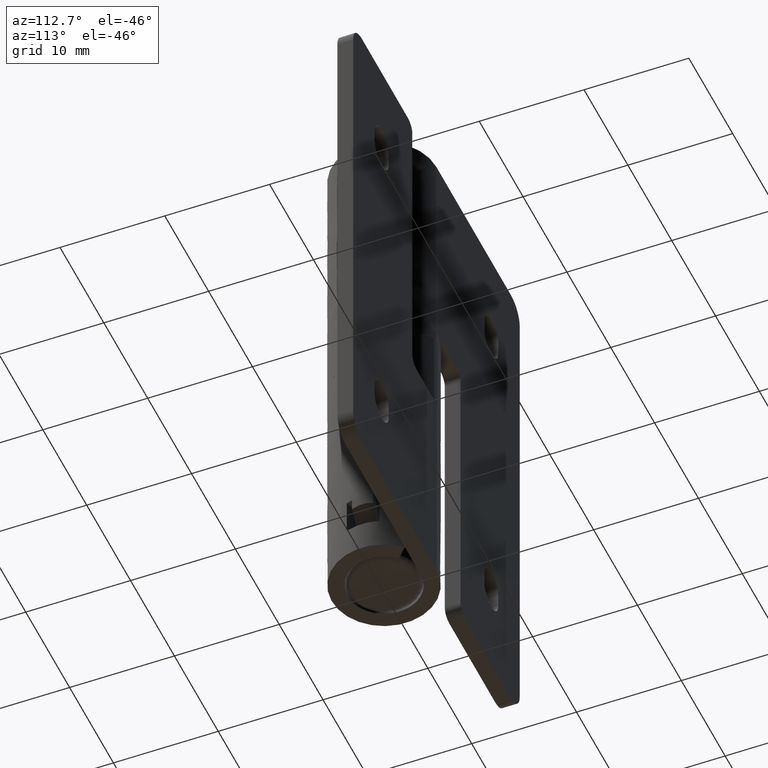
[diagram: clean part render]
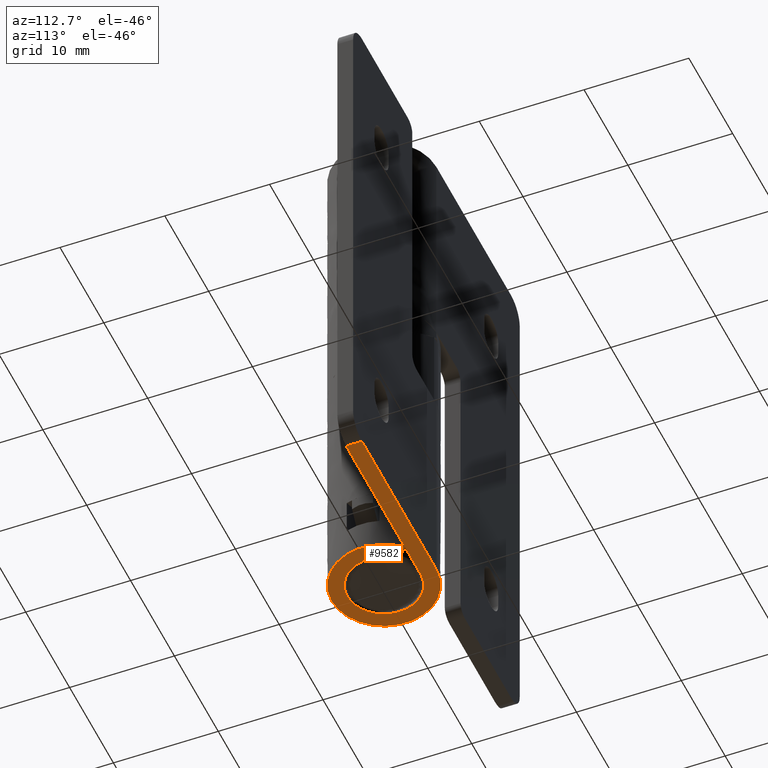
[diagram: same view with one face highlighted and labeled with its STEP entity id]
A machine part, auxiliary view. The second image highlights one B-rep face of the part: STEP entity #9582.
In plain terms, the highlighted face is a freeform B-spline surface patch.
Its self-contained STEP definition (entity closure, byte-faithful):
#6461=CARTESIAN_POINT('',(2.499499989507380,2.449999975338090,0.000000011492033));
#6462=VERTEX_POINT('',#6461);
#6468=CARTESIAN_POINT('',(0.000000015343861,3.500000000000000,7.054697E-017));
#6469=VERTEX_POINT('',#6468);
#6470=CARTESIAN_POINT('',(0.000000015343861,3.500000000000000,7.054697E-017));
#6471=CARTESIAN_POINT('',(-0.262597160987265,3.500034496063480,-1.207352E-009));
#6472=CARTESIAN_POINT('',(-0.812797784547809,3.437829386577306,-3.737027E-009));
#6473=CARTESIAN_POINT('',(-1.511540618678862,3.184087817025558,-6.949660E-009));
#6474=CARTESIAN_POINT('',(-2.077655236587386,2.835355592311318,-9.552504E-009));
#6475=CARTESIAN_POINT('',(-2.590247584754123,2.392408941032938,-0.000000011909266));
#6476=CARTESIAN_POINT('',(-3.009368419987804,1.839951346806849,-0.000000013836272));
#6477=CARTESIAN_POINT('',(-3.315850645698954,1.179655012094869,-0.000000015245395));
#6478=CARTESIAN_POINT('',(-3.472754688151668,0.571421932481008,-0.000000015966798));
#6479=CARTESIAN_POINT('',(-3.512362089206452,0.008039214522075,-0.000000016148902));
#6480=CARTESIAN_POINT('',(-3.473218923582445,-0.516616621800200,-0.000000015968933));
#6481=CARTESIAN_POINT('',(-3.356123270875958,-1.056044811361993,-0.000000015430558));
#6482=CARTESIAN_POINT('',(-3.112147902799443,-1.648501095172054,-0.000000014308825));
#6483=CARTESIAN_POINT('',(-2.772922463612821,-2.162196813832246,-0.000000012749157));
#6484=CARTESIAN_POINT('',(-2.362902552822391,-2.602564014725164,-0.000000010863995));
#6485=CARTESIAN_POINT('',(-1.916616027342317,-2.949143570025033,-8.812088E-009));
#6486=CARTESIAN_POINT('',(-1.340670122033587,-3.255470174842753,-6.164043E-009));
#6487=CARTESIAN_POINT('',(-0.728164392287328,-3.445791448440985,-3.347905E-009));
#6488=CARTESIAN_POINT('',(-0.129262051887150,-3.510853791605419,-5.943124E-010));
#6489=CARTESIAN_POINT('',(0.521792251714403,-3.483743251689683,2.399061E-009));
#6490=CARTESIAN_POINT('',(1.147171757021270,-3.334198853460291,5.274389E-009));
#6491=CARTESIAN_POINT('',(1.827019229854498,-3.011043058499086,8.400146E-009));
#6492=CARTESIAN_POINT('',(2.373448716840606,-2.607076176031465,0.000000010912483));
#6493=CARTESIAN_POINT('',(2.831716435618370,-2.089951235155422,0.000000013019476));
#6494=CARTESIAN_POINT('',(3.136470904141433,-1.584899028744776,0.000000014420655));
#6495=CARTESIAN_POINT('',(3.363877622617172,-1.027845107554673,0.000000015466211));
#6496=CARTESIAN_POINT('',(3.482440619350792,-0.487636465367029,0.000000016011332));
#6497=CARTESIAN_POINT('',(3.510547265206493,0.075551976067158,0.000000016140558));
#6498=CARTESIAN_POINT('',(3.457957595231188,0.662585024884783,0.000000015898765));
#6499=CARTESIAN_POINT('',(3.272143728227364,1.316235542123964,0.000000015044443));
#6500=CARTESIAN_POINT('',(2.934048231165332,1.947920809185703,0.000000013489970));
#6501=CARTESIAN_POINT('',(2.648314410644671,2.298201733084586,0.000000012176242));
#6502=CARTESIAN_POINT('',(2.499499989507380,2.449999975338090,0.000000011492033));
#6503=B_SPLINE_CURVE_WITH_KNOTS('',3,(#6470,#6471,#6472,#6473,#6474,#6475,#6476,#6477,#6478,#6479,#6480,#6481,#6482,#6483,#6484,#6485,#6486,#6487,#6488,#6489,#6490,#6491,#6492,#6493,#6494,#6495,#6496,#6497,#6498,#6499,#6500,#6501,#6502),.UNSPECIFIED.,.F.,.U.,(4,1,1,1,1,1,1,1,1,1,1,1,1,1,1,1,1,1,1,1,1,1,1,1,1,1,1,1,1,1,4),(0.000000257429285,0.787794774174067,1.650621592562949,2.213345893145508,2.776063600575395,3.676414111198060,4.276644208547181,4.951881400589727,5.552116994389161,5.964761091738005,6.527486290575013,7.202755460792254,7.878018073888818,8.365712651995366,9.003470962559366,9.566183783428674,10.316419122000809,10.916657190718841,11.366836733627860,12.267192722851011,12.829910501677031,13.617715603433760,14.292986071601950,14.893168815995701,15.380860770594690,16.093651302033130,16.543824805014090,17.069028530887270,17.856834031793721,18.569615039579240,19.207344571968960),.UNSPECIFIED.);
#6504=EDGE_CURVE('',#6469,#6462,#6503,.T.);
#8132=CARTESIAN_POINT('',(17.000001015343852,5.0,0.000000078161463));
#8133=VERTEX_POINT('',#8132);
#8156=CARTESIAN_POINT('',(17.000001015343852,3.500000000000000,0.000000078161463));
#8157=VERTEX_POINT('',#8156);
#8172=CARTESIAN_POINT('',(17.000001015343852,3.500000000000000,0.000000078161463));
#8173=CARTESIAN_POINT('',(17.000001015343852,5.0,0.000000078161463));
#8174=QUASI_UNIFORM_CURVE('',1,(#8172,#8173),.UNSPECIFIED.,.F.,.U.);
#8175=EDGE_CURVE('',#8157,#8133,#8174,.T.);
#9516=CARTESIAN_POINT('',(18.098897015304271,5.499499958655814,0.000000083213893));
#9517=CARTESIAN_POINT('',(-6.098816346582850,5.499499958655814,-0.000000028040728));
#9518=CARTESIAN_POINT('',(18.098897015304271,-5.499499784611458,0.000000083213893));
#9519=CARTESIAN_POINT('',(-6.098816346582850,-5.499499784611458,-0.000000028040728));
#9520=B_SPLINE_SURFACE_WITH_KNOTS('',1,1,((#9516,#9518),(#9517,#9519)),.UNSPECIFIED.,.F.,.F.,.U.,(2,2),(2,2),(0.0,24.197713361887121),(0.0,10.998999743267269),.UNSPECIFIED.);
#9521=CARTESIAN_POINT('',(17.000001015343852,3.500000000000000,0.000000078161463));
#9522=CARTESIAN_POINT('',(0.000000015343861,3.500000000000000,7.054697E-017));
#9523=QUASI_UNIFORM_CURVE('',1,(#9521,#9522),.UNSPECIFIED.,.F.,.U.);
#9524=EDGE_CURVE('',#8157,#6469,#9523,.T.);
#9525=ORIENTED_EDGE('',*,*,#9524,.T.);
#9526=ORIENTED_EDGE('',*,*,#6504,.T.);
#9527=CARTESIAN_POINT('',(3.584604070007145,3.485773052178175,0.000000016481052));
#9528=VERTEX_POINT('',#9527);
#9529=CARTESIAN_POINT('',(2.499499989507380,2.449999975338090,0.000000011492033));
#9530=CARTESIAN_POINT('',(3.584604070007145,3.485773052178175,0.000000016481052));
#9531=QUASI_UNIFORM_CURVE('',1,(#9529,#9530),.UNSPECIFIED.,.F.,.U.);
#9532=EDGE_CURVE('',#6462,#9528,#9531,.T.);
#9533=ORIENTED_EDGE('',*,*,#9532,.T.);
#9534=CARTESIAN_POINT('',(0.000000015343861,5.0,7.054697E-017));
#9535=VERTEX_POINT('',#9534);
#9536=CARTESIAN_POINT('',(0.000000015343861,5.0,7.054697E-017));
#9537=CARTESIAN_POINT('',(-0.357024533825708,5.000063928363971,-1.641503E-009));
#9538=CARTESIAN_POINT('',(-0.928218790116664,4.938541606489725,-4.267702E-009));
#9539=CARTESIAN_POINT('',(-1.770957189138961,4.697596105341820,-8.142388E-009));
#9540=CARTESIAN_POINT('',(-2.584245725839754,4.320971467430835,-0.000000011881671));
#9541=CARTESIAN_POINT('',(-3.320566857083065,3.775809093516197,-0.000000015267079));
#9542=CARTESIAN_POINT('',(-4.004703282737777,3.043570560313760,-0.000000018412556));
#9543=CARTESIAN_POINT('',(-4.533230232854519,2.208076475713448,-0.000000020842581));
#9544=CARTESIAN_POINT('',(-4.885508475956358,1.209103528469508,-0.000000022462263));
#9545=CARTESIAN_POINT('',(-5.006325226282558,0.357238623265903,-0.000000023017746));
#9546=CARTESIAN_POINT('',(-4.999546302449583,-0.393763396296538,-0.000000022986578));
#9547=CARTESIAN_POINT('',(-4.889957707855277,-1.155679395361776,-0.000000022482719));
#9548=CARTESIAN_POINT('',(-4.657126201936222,-1.872016618222213,-0.000000021412222));
#9549=CARTESIAN_POINT('',(-4.320934355871438,-2.543365061580605,-0.000000019866502));
#9550=CARTESIAN_POINT('',(-3.870985526353313,-3.211556331892801,-0.000000017797757));
#9551=CARTESIAN_POINT('',(-3.226545482296722,-3.862756091514942,-0.000000014834794));
#9552=CARTESIAN_POINT('',(-2.409056084374039,-4.412992898855915,-0.000000011076196));
#9553=CARTESIAN_POINT('',(-1.521057440556562,-4.799413111021188,-6.993416E-009));
#9554=CARTESIAN_POINT('',(-0.642537300091124,-4.983804369252355,-2.954215E-009));
#9555=CARTESIAN_POINT('',(0.179794451293236,-5.012985538801333,8.266468E-010));
#9556=CARTESIAN_POINT('',(0.874195877572704,-4.940719926257582,4.019319E-009));
#9557=CARTESIAN_POINT('',(1.602712432842811,-4.756022761886407,7.368844E-009));
#9558=CARTESIAN_POINT('',(2.229980170053251,-4.492105128701321,0.000000010252853));
#9559=CARTESIAN_POINT('',(2.861579491772728,-4.120233447886823,0.000000013156778));
#9560=CARTESIAN_POINT('',(3.394643065015603,-3.696720139900843,0.000000015607662));
#9561=CARTESIAN_POINT('',(3.979612129282664,-3.068195184136910,0.000000018297193));
#9562=CARTESIAN_POINT('',(4.430877712150138,-2.376551020863421,0.000000020371992));
#9563=CARTESIAN_POINT('',(4.803794461422353,-1.484697357808465,0.000000022086563));
#9564=CARTESIAN_POINT('',(4.990589951730748,-0.625034314547904,0.000000022945399));
#9565=CARTESIAN_POINT('',(5.011899757433966,0.180581791289406,0.000000023043376));
#9566=CARTESIAN_POINT('',(4.931456585847988,0.927082038565156,0.000000022673520));
#9567=CARTESIAN_POINT('',(4.739314003127332,1.673530543794962,0.000000021790100));
#9568=CARTESIAN_POINT('',(4.314801488366949,2.602369141613161,0.000000019838304));
#9569=CARTESIAN_POINT('',(3.883384860333561,3.178717128899770,0.000000017854766));
#9570=CARTESIAN_POINT('',(3.584604070007145,3.485773052178175,0.000000016481052));
#9571=B_SPLINE_CURVE_WITH_KNOTS('',3,(#9536,#9537,#9538,#9539,#9540,#9541,#9542,#9543,#9544,#9545,#9546,#9547,#9548,#9549,#9550,#9551,#9552,#9553,#9554,#9555,#9556,#9557,#9558,#9559,#9560,#9561,#9562,#9563,#9564,#9565,#9566,#9567,#9568,#9569,#9570),.UNSPECIFIED.,.F.,.U.,(4,1,1,1,1,1,1,1,1,1,1,1,1,1,1,1,1,1,1,1,1,1,1,1,1,1,1,1,1,1,1,1,4),(0.000000146044506,1.071061430720786,1.713679205240883,2.624098897515331,3.748721098530499,4.444918060670592,5.623098647977308,6.694166137094129,7.604528530889819,8.193614732986561,8.943362350259125,9.907318869534493,10.442853485872639,11.192600119494880,12.317215178296051,13.174085574741550,14.138007778235909,15.209055232438860,15.851705442589809,16.601453275413530,17.297649281622778,18.100947980236651,18.636476404783920,19.493325670064589,20.135968537718799,21.206996509613280,21.956758949339399,23.027823179622221,23.831121878007611,24.366659209757039,25.277065716764199,26.133926519800632,27.419180424610548),.UNSPECIFIED.);
#9572=EDGE_CURVE('',#9535,#9528,#9571,.T.);
#9573=ORIENTED_EDGE('',*,*,#9572,.F.);
#9574=CARTESIAN_POINT('',(0.000000015343861,5.0,7.054697E-017));
#9575=CARTESIAN_POINT('',(17.000001015343852,5.0,0.000000078161463));
#9576=QUASI_UNIFORM_CURVE('',1,(#9574,#9575),.UNSPECIFIED.,.F.,.U.);
#9577=EDGE_CURVE('',#9535,#8133,#9576,.T.);
#9578=ORIENTED_EDGE('',*,*,#9577,.T.);
#9579=ORIENTED_EDGE('',*,*,#8175,.F.);
#9580=EDGE_LOOP('',(#9525,#9526,#9533,#9573,#9578,#9579));
#9581=FACE_OUTER_BOUND('',#9580,.T.);
#9582=ADVANCED_FACE('',(#9581),#9520,.F.);